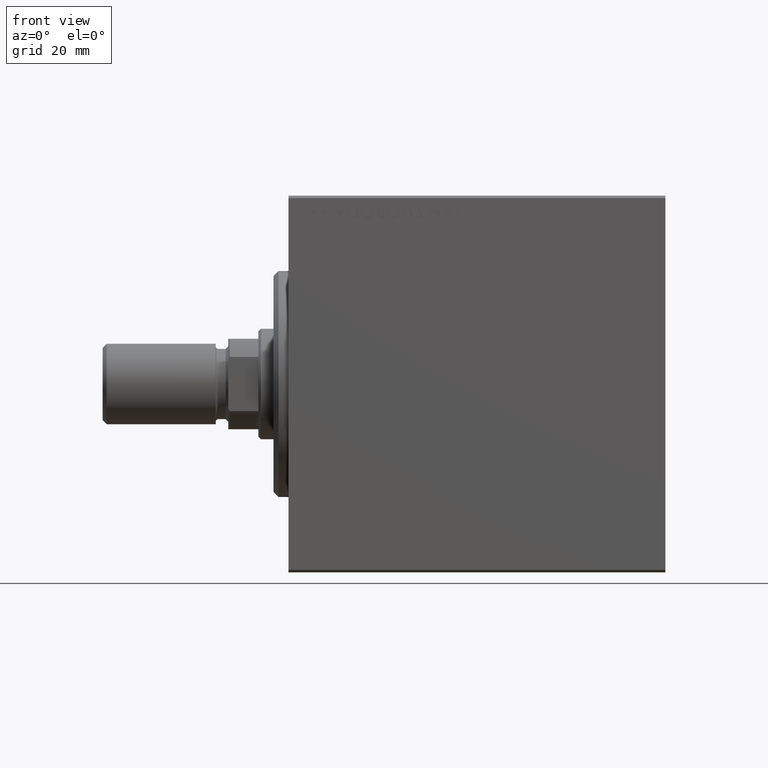
[diagram: clean part render]
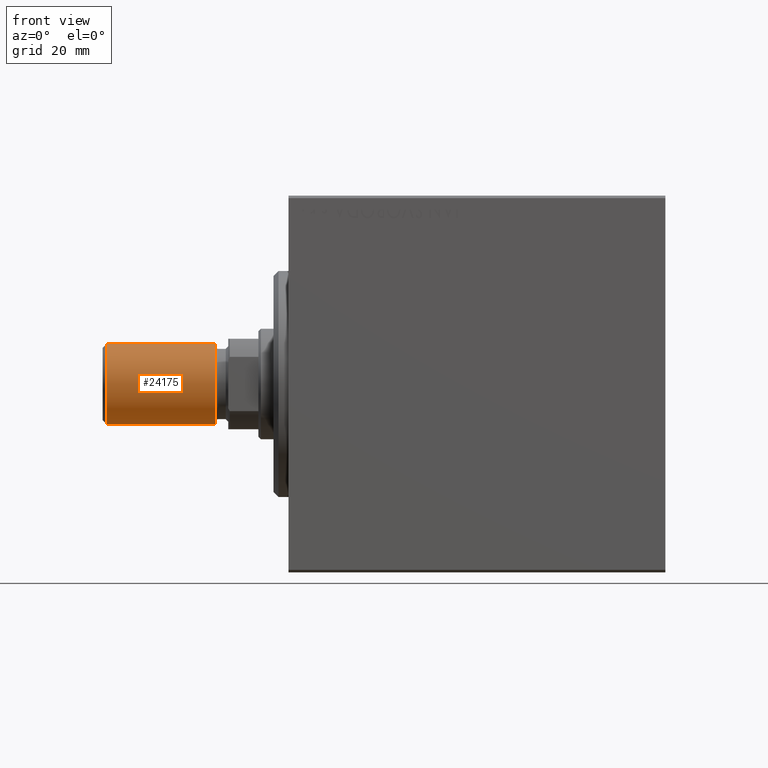
[diagram: same view with one face highlighted and labeled with its STEP entity id]
A machine part, front view. The second image highlights one B-rep face of the part: STEP entity #24175.
In plain terms, the highlighted cylindrical surface (partial cylindrical patch) has radius 8 mm, axis along (-1, -0, 0).
Its self-contained STEP definition (entity closure, byte-faithful):
#369 = DIRECTION ( 'NONE',  ( -0.000000000000000000, -0.000000000000000000, -1.000000000000000000 ) ) ;
#2932 = DIRECTION ( 'NONE',  ( 1.000000000000000000, 0.000000000000000000, 0.000000000000000000 ) ) ;
#4308 = ORIENTED_EDGE ( 'NONE', *, *, #24601, .T. ) ;
#5585 = CARTESIAN_POINT ( 'NONE',  ( -8.000000000000000000, 0.000000000000000000, 0.8000000000000160316 ) ) ;
#7848 = VERTEX_POINT ( 'NONE', #34828 ) ;
#8999 = EDGE_CURVE ( 'NONE', #19745, #7848, #41946, .T. ) ;
#14166 = CARTESIAN_POINT ( 'NONE',  ( -8.000000000000000000, 0.000000000000000000, 22.50000000000000000 ) ) ;
#15714 = CARTESIAN_POINT ( 'NONE',  ( 0.000000000000000000, 0.000000000000000000, 22.50000000000000000 ) ) ;
#16394 = DIRECTION ( 'NONE',  ( 1.000000000000000000, 0.000000000000000000, 0.000000000000000000 ) ) ;
#16516 = CYLINDRICAL_SURFACE ( 'NONE', #27334, 8.000000000000000000 ) ;
#16955 = CARTESIAN_POINT ( 'NONE',  ( 0.000000000000000000, 0.000000000000000000, 22.50000000000000000 ) ) ;
#17837 = ORIENTED_EDGE ( 'NONE', *, *, #20799, .T. ) ;
#19745 = VERTEX_POINT ( 'NONE', #24685 ) ;
#20031 = DIRECTION ( 'NONE',  ( -0.000000000000000000, -0.000000000000000000, 1.000000000000000000 ) ) ;
#20799 = EDGE_CURVE ( 'NONE', #36018, #7848, #27976, .T. ) ;
#21283 = VECTOR ( 'NONE', #38123, 1000.000000000000000 ) ;
#21524 = EDGE_CURVE ( 'NONE', #22435, #19745, #22965, .T. ) ;
#22435 = VERTEX_POINT ( 'NONE', #14166 ) ;
#22965 = CIRCLE ( 'NONE', #34457, 8.000000000000000000 ) ;
#23787 = ORIENTED_EDGE ( 'NONE', *, *, #8999, .F. ) ;
#24175 = ADVANCED_FACE ( 'NONE', ( #30263 ), #16516, .T. ) ;
#24601 = EDGE_CURVE ( 'NONE', #22435, #36018, #37322, .T. ) ;
#24685 = CARTESIAN_POINT ( 'NONE',  ( 8.000000000000000000, 9.797174393178823685E-16, 22.50000000000000000 ) ) ;
#26300 = DIRECTION ( 'NONE',  ( 0.000000000000000000, 0.000000000000000000, 1.000000000000000000 ) ) ;
#27334 = AXIS2_PLACEMENT_3D ( 'NONE', #16955, #30698, #37011 ) ;
#27976 = CIRCLE ( 'NONE', #44520, 8.000000000000000000 ) ;
#28699 = ORIENTED_EDGE ( 'NONE', *, *, #21524, .F. ) ;
#30263 = FACE_OUTER_BOUND ( 'NONE', #41251, .T. ) ;
#30698 = DIRECTION ( 'NONE',  ( -0.000000000000000000, -0.000000000000000000, -1.000000000000000000 ) ) ;
#30994 = CARTESIAN_POINT ( 'NONE',  ( -8.000000000000000000, 0.000000000000000000, 22.50000000000000000 ) ) ;
#33964 = CARTESIAN_POINT ( 'NONE',  ( 0.000000000000000000, 0.000000000000000000, 0.8000000000000160316 ) ) ;
#34457 = AXIS2_PLACEMENT_3D ( 'NONE', #15714, #26300, #16394 ) ;
#34828 = CARTESIAN_POINT ( 'NONE',  ( 8.000000000000000000, 9.797174393178823685E-16, 0.8000000000000160316 ) ) ;
#36018 = VERTEX_POINT ( 'NONE', #5585 ) ;
#37011 = DIRECTION ( 'NONE',  ( -1.000000000000000000, 0.000000000000000000, 0.000000000000000000 ) ) ;
#37322 = LINE ( 'NONE', #30994, #43181 ) ;
#37678 = CARTESIAN_POINT ( 'NONE',  ( 8.000000000000000000, 9.797174393178823685E-16, 22.50000000000000000 ) ) ;
#38123 = DIRECTION ( 'NONE',  ( -0.000000000000000000, -0.000000000000000000, -1.000000000000000000 ) ) ;
#41251 = EDGE_LOOP ( 'NONE', ( #23787, #28699, #4308, #17837 ) ) ;
#41946 = LINE ( 'NONE', #37678, #21283 ) ;
#43181 = VECTOR ( 'NONE', #369, 1000.000000000000000 ) ;
#44520 = AXIS2_PLACEMENT_3D ( 'NONE', #33964, #20031, #2932 ) ;